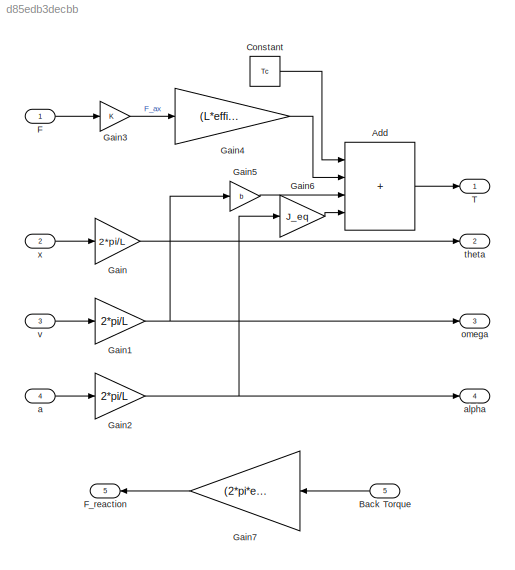
MODEL slx_d85edb3decbb
KIND model
CONFIG AbsTol = auto
CONFIG EnableMultiTasking = off
CONFIG FixedStep = auto
CONFIG MaxStep = auto
CONFIG MinStep = auto
CONFIG RelTol = 1e-3
CONFIG SampleTimeConstraint = Unconstrained
CONFIG SolverName = VariableStepAuto
CONFIG StartTime = 0.0
CONFIG StopTime = 10.0
WORKSPACE source: mxarray member
WORKSPACE J_eq = 1
WORKSPACE L = 1
WORKSPACE Tc = 1
WORKSPACE b = 1
WORKSPACE efficiency = 0.92
WORKSPACE p = 0.005
BLOCK [Sum] Add
  IconShape = rectangular
  Inputs = ++++
BLOCK [Inport] Back Torque
  NameLocation = top
  Port = 5
BLOCK [Constant] Constant
  Value = Tc
BLOCK [Inport] F
BLOCK [Outport] F_reaction
  NameLocation = top
  Port = 5
BLOCK [Gain] Gain
  Gain = 2*pi/L
BLOCK [Gain] Gain1
  Gain = 2*pi/L
BLOCK [Gain] Gain2
  Gain = 2*pi/L
BLOCK [Gain] Gain3
BLOCK [Gain] Gain4
  Gain = (L*efficiency)/(2*pi)
BLOCK [Gain] Gain5
  Gain = b
BLOCK [Gain] Gain6
  Gain = J_eq
BLOCK [Gain] Gain7
  Gain = (2*pi*efficiency)/L
  NameLocation = top
BLOCK [Outport] T
BLOCK [Inport] a
  Port = 4
BLOCK [Outport] alpha
  Port = 4
BLOCK [Outport] omega
  Port = 3
BLOCK [Outport] theta
  Port = 2
BLOCK [Inport] v
  Port = 3
BLOCK [Inport] x
  Port = 2
LINE Add:1 -> T:1
LINE Back Torque:1 -> Gain7:1
LINE Constant:1 -> Add:1
LINE F:1 -> Gain3:1
NET Gain1:1 -> Gain5:1, omega:1
NET Gain2:1 -> Gain6:1, alpha:1
LINE Gain3:1 -> Gain4:1
LINE Gain4:1 -> Add:2
LINE Gain5:1 -> Add:3
LINE Gain6:1 -> Add:4
LINE Gain7:1 -> F_reaction:1
LINE Gain:1 -> theta:1
LINE a:1 -> Gain2:1
LINE v:1 -> Gain1:1
LINE x:1 -> Gain:1
note: NET lines group one-source signal fan-out (src -> all destinations, sorted); 1:1 wires keep LINE
